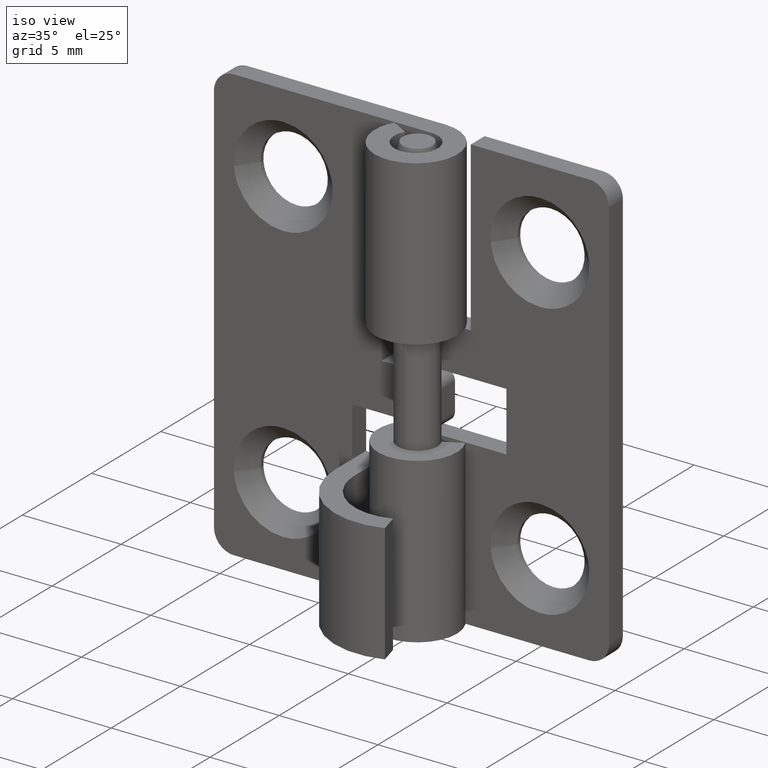
[diagram: clean part render]
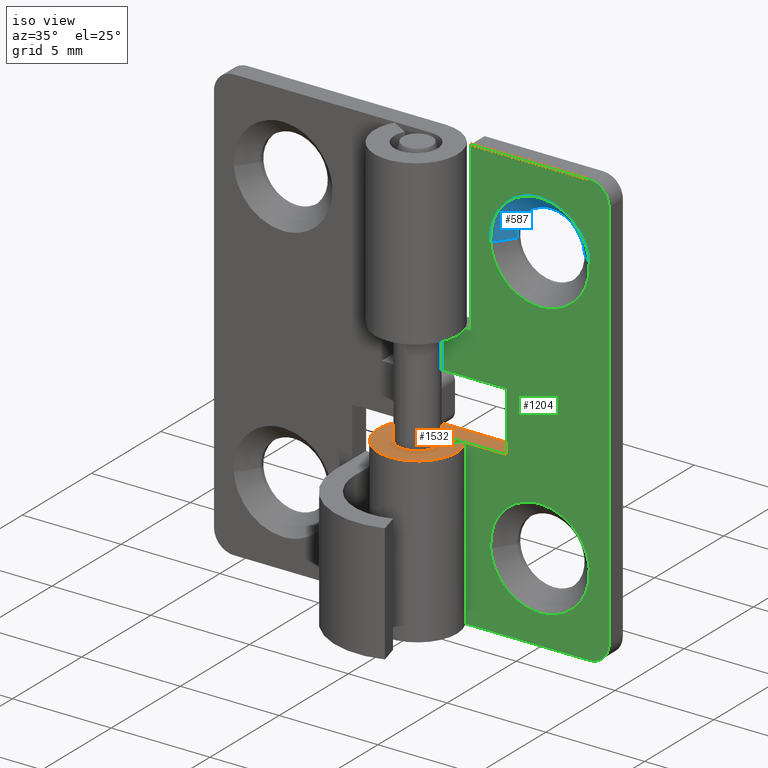
[diagram: same view with three faces highlighted in distinct colors, each labeled with its STEP entity id]
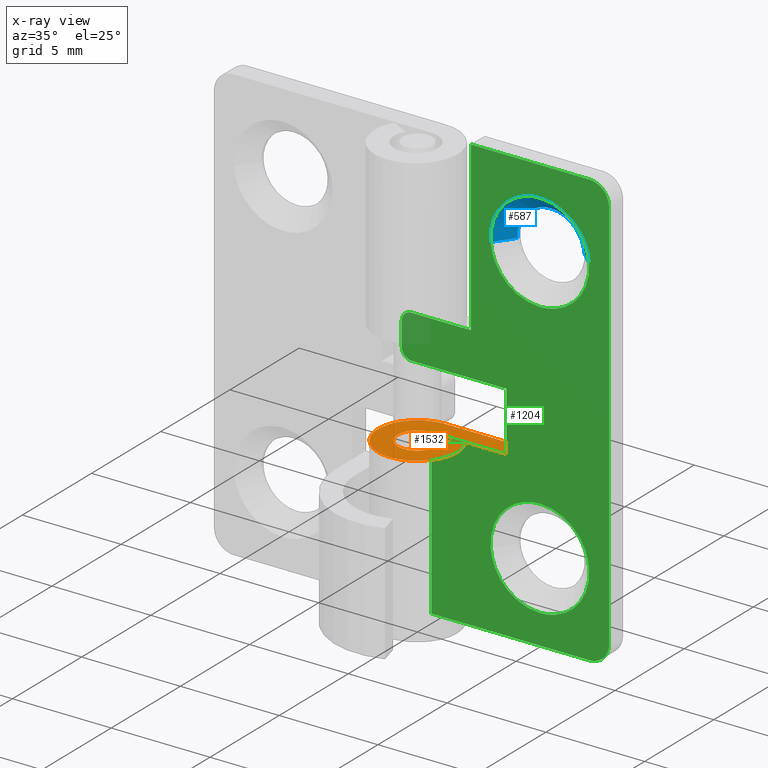
[diagram: x-ray of the same camera — body ghosted, the three highlighted faces saturated]
A machine part, iso view with three faces highlighted in distinct colors.
The next image is the same camera in x-ray (body ghosted, the three faces saturated) — at least one of them is partly hidden behind the body in this view.
Their STEP definitions:

[orange] entity #1532 — the highlighted face is a freeform B-spline surface patch.
#981=CARTESIAN_POINT('',(-0.000006965093345,1.0,8.299999999999749));
#982=VERTEX_POINT('',#981);
#990=CARTESIAN_POINT('',(0.879978830246548,0.475000000000011,8.299999999999749));
#991=VERTEX_POINT('',#990);
#992=CARTESIAN_POINT('',(-0.000006965093345,1.0,8.299999999999749));
#993=CARTESIAN_POINT('',(-0.081370259930083,1.000019977167096,8.299999999999747));
#994=CARTESIAN_POINT('',(-0.240701080772398,0.980448577172793,8.299999999999740));
#995=CARTESIAN_POINT('',(-0.445075075085504,0.903277571020076,8.299999999999738));
#996=CARTESIAN_POINT('',(-0.631964925553096,0.784947837464034,8.299999999999828));
#997=CARTESIAN_POINT('',(-0.780456693386467,0.638620629246154,8.299999999999521));
#998=CARTESIAN_POINT('',(-0.899731004911428,0.452102205491534,8.299999999999869));
#999=CARTESIAN_POINT('',(-0.970427842706709,0.267420976054226,8.299999999999649));
#1000=CARTESIAN_POINT('',(-1.001024135862589,0.086148387354499,8.299999999999834));
#1001=CARTESIAN_POINT('',(-1.000928656308212,-0.090661618224671,8.299999999999614));
#1002=CARTESIAN_POINT('',(-0.973884994139413,-0.244989656259819,8.300000000000038));
#1003=CARTESIAN_POINT('',(-0.918674884419100,-0.405596291784727,8.299999999999720));
#1004=CARTESIAN_POINT('',(-0.829128914519692,-0.574015514614957,8.299999999999258));
#1005=CARTESIAN_POINT('',(-0.670513937231774,-0.757650112962915,8.300000000000548));
#1006=CARTESIAN_POINT('',(-0.460621345178827,-0.899352063673781,8.299999999999038));
#1007=CARTESIAN_POINT('',(-0.242278565492833,-0.977716447252212,8.299999999999555));
#1008=CARTESIAN_POINT('',(-0.049925210100088,-1.004066228414415,8.299999999999960));
#1009=CARTESIAN_POINT('',(0.140393800371898,-0.996108454492742,8.299999999998995));
#1010=CARTESIAN_POINT('',(0.322983651035409,-0.953365146317476,8.300000000001209));
#1011=CARTESIAN_POINT('',(0.515002552293337,-0.865701593204397,8.299999999999166));
#1012=CARTESIAN_POINT('',(0.682406862759888,-0.741893534516543,8.299999999999510));
#1013=CARTESIAN_POINT('',(0.834396962778314,-0.566969021772626,8.300000000000340));
#1014=CARTESIAN_POINT('',(0.936665235401503,-0.373626250166734,8.299999999999443));
#1015=CARTESIAN_POINT('',(0.989724682688783,-0.176262381763561,8.299999999999816));
#1016=CARTESIAN_POINT('',(1.005856368342022,0.013537876973989,8.299999999999736));
#1017=CARTESIAN_POINT('',(0.982989422480446,0.233976477823912,8.299999999999756));
#1018=CARTESIAN_POINT('',(0.925104016529079,0.391483135513708,8.299999999999745));
#1019=CARTESIAN_POINT('',(0.879978830246548,0.475000000000011,8.299999999999749));
#1020=B_SPLINE_CURVE_WITH_KNOTS('',3,(#992,#993,#994,#995,#996,#997,#998,#999,#1000,#1001,#1002,#1003,#1004,#1005,#1006,#1007,#1008,#1009,#1010,#1011,#1012,#1013,#1014,#1015,#1016,#1017,#1018,#1019),.UNSPECIFIED.,.F.,.U.,(4,1,1,1,1,1,1,1,1,1,1,1,1,1,1,1,1,1,1,1,1,1,1,1,1,4),(0.000000120187885,0.244086064710488,0.478018808845063,0.650922347015783,0.905192610832736,1.098435144828809,1.312001110971242,1.495076171934674,1.647640630548407,1.840887879058792,1.962936539922287,2.156183852194436,2.410455558530331,2.685040475316551,2.908802662388903,3.102048450986415,3.264780375931596,3.478369327339765,3.661437057523252,3.895374455493550,4.098763843950596,4.353035550284639,4.546282862554501,4.709014787497143,4.922601068480472,5.207375455252501),.UNSPECIFIED.);
#1021=EDGE_CURVE('',#982,#991,#1020,.T.);
#1177=CARTESIAN_POINT('',(3.799999999999955,1.0,8.299999999999798));
#1178=VERTEX_POINT('',#1177);
#1184=CARTESIAN_POINT('',(-0.000006965093345,1.0,8.299999999999749));
#1185=CARTESIAN_POINT('',(3.799999999999955,1.0,8.299999999999798));
#1186=QUASI_UNIFORM_CURVE('',1,(#1184,#1185),.UNSPECIFIED.,.F.,.U.);
#1187=EDGE_CURVE('',#982,#1178,#1186,.T.);
#1467=CARTESIAN_POINT('',(4.089710068468082,-2.199779040433200,8.299999999999798));
#1468=CARTESIAN_POINT('',(-2.289711819820733,-2.199779040433200,8.299999999999798));
#1469=CARTESIAN_POINT('',(4.089710068468082,2.199807483362808,8.299999999999798));
#1470=CARTESIAN_POINT('',(-2.289711819820733,2.199807483362808,8.299999999999798));
#1471=B_SPLINE_SURFACE_WITH_KNOTS('',1,1,((#1467,#1469),(#1468,#1470)),.UNSPECIFIED.,.F.,.F.,.U.,(2,2),(2,2),(0.0,6.379421888288816),(0.0,4.399586523796008),.UNSPECIFIED.);
#1472=CARTESIAN_POINT('',(-0.000006965093348,2.000008000000035,8.299999999999798));
#1473=VERTEX_POINT('',#1472);
#1474=CARTESIAN_POINT('',(1.759964625586445,0.950000000000023,8.299999999999749));
#1475=VERTEX_POINT('',#1474);
#1476=CARTESIAN_POINT('',(-0.000006965093348,2.000008000000035,8.299999999999798));
#1477=CARTESIAN_POINT('',(-0.162736027515723,2.000044504278987,8.299999999999759));
#1478=CARTESIAN_POINT('',(-0.447495352640279,1.965061079306679,8.299999999999896));
#1479=CARTESIAN_POINT('',(-0.807511597155931,1.839462231392853,8.299999999999725));
#1480=CARTESIAN_POINT('',(-1.082166202912576,1.689990233205043,8.299999999999892));
#1481=CARTESIAN_POINT('',(-1.365566465822105,1.478715059453059,8.299999999999818));
#1482=CARTESIAN_POINT('',(-1.622591005192464,1.195392488859381,8.299999999999724));
#1483=CARTESIAN_POINT('',(-1.836918960805826,0.823809617010241,8.299999999999898));
#1484=CARTESIAN_POINT('',(-1.961001906509199,0.455460503094843,8.299999999999768));
#1485=CARTESIAN_POINT('',(-2.005672853655311,0.104231016484522,8.299999999999832));
#1486=CARTESIAN_POINT('',(-1.995327980773310,-0.228579052723852,8.299999999999873));
#1487=CARTESIAN_POINT('',(-1.940403095471004,-0.516161638146743,8.299999999999656));
#1488=CARTESIAN_POINT('',(-1.822185425856305,-0.849040570625403,8.300000000000139));
#1489=CARTESIAN_POINT('',(-1.654408250832302,-1.146075284437597,8.299999999999166));
#1490=CARTESIAN_POINT('',(-1.415647867651395,-1.425272400802040,8.300000000000699));
#1491=CARTESIAN_POINT('',(-1.140041848585184,-1.657733081808701,8.299999999998526));
#1492=CARTESIAN_POINT('',(-0.831014083981307,-1.831607667088232,8.300000000000638));
#1493=CARTESIAN_POINT('',(-0.444939612140593,-1.963605461352163,8.299999999999468));
#1494=CARTESIAN_POINT('',(-0.052145858804571,-2.015417960756452,8.299999999999823));
#1495=CARTESIAN_POINT('',(0.334664835988250,-1.981411818691095,8.299999999999738));
#1496=CARTESIAN_POINT('',(0.663522566589124,-1.895550709857662,8.299999999999733));
#1497=CARTESIAN_POINT('',(0.975205403486523,-1.758970914821508,8.299999999999741));
#1498=CARTESIAN_POINT('',(1.245784825331895,-1.575390971971697,8.299999999999727));
#1499=CARTESIAN_POINT('',(1.473613967383104,-1.361530603824661,8.299999999999733));
#1500=CARTESIAN_POINT('',(1.640315678403764,-1.155277004246180,8.299999999999727));
#1501=CARTESIAN_POINT('',(1.805145114113828,-0.881839121110803,8.299999999999731));
#1502=CARTESIAN_POINT('',(1.946636695510794,-0.527356267160462,8.299999999999647));
#1503=CARTESIAN_POINT('',(2.009241721511169,-0.129217688888698,8.300000000000029));
#1504=CARTESIAN_POINT('',(1.993071361530576,0.251259663452222,8.299999999998947));
#1505=CARTESIAN_POINT('',(1.920998871120806,0.597742678906226,8.300000000001909));
#1506=CARTESIAN_POINT('',(1.824393948001747,0.830677184342205,8.299999999997503));
#1507=CARTESIAN_POINT('',(1.759964625586445,0.950000000000023,8.299999999999749));
#1508=B_SPLINE_CURVE_WITH_KNOTS('',3,(#1476,#1477,#1478,#1479,#1480,#1481,#1482,#1483,#1484,#1485,#1486,#1487,#1488,#1489,#1490,#1491,#1492,#1493,#1494,#1495,#1496,#1497,#1498,#1499,#1500,#1501,#1502,#1503,#1504,#1505,#1506,#1507),.UNSPECIFIED.,.F.,.U.,(4,1,1,1,1,1,1,1,1,1,1,1,1,1,1,1,1,1,1,1,1,1,1,1,1,1,1,1,1,4),(0.000000081835703,0.488181926425398,0.854330395165906,1.139112772657091,1.423894831945756,1.912086998074340,2.278240352626675,2.705392527699861,3.071530619221313,3.335976965983448,3.702121862703955,3.946218378135586,4.393733068731598,4.719197738785935,5.044660580100169,5.471811034114723,5.776928295087360,6.265127727385354,6.651616066265358,6.936398080547859,7.282197147153353,7.668693325937672,7.912774012663915,8.217885729282383,8.461984512461639,8.868817495861713,9.357011868602045,9.662132026390999,10.007943633401799,10.414759565299359),.UNSPECIFIED.);
#1509=EDGE_CURVE('',#1473,#1475,#1508,.T.);
#1510=ORIENTED_EDGE('',*,*,#1509,.T.);
#1511=CARTESIAN_POINT('',(1.759964625586445,0.950000000000023,8.299999999999749));
#1512=CARTESIAN_POINT('',(0.879978830246548,0.475000000000011,8.299999999999749));
#1513=QUASI_UNIFORM_CURVE('',1,(#1511,#1512),.UNSPECIFIED.,.F.,.U.);
#1514=EDGE_CURVE('',#1475,#991,#1513,.T.);
#1515=ORIENTED_EDGE('',*,*,#1514,.T.);
#1516=ORIENTED_EDGE('',*,*,#1021,.F.);
#1517=ORIENTED_EDGE('',*,*,#1187,.T.);
#1518=CARTESIAN_POINT('',(3.799999999999955,2.000008000000000,8.299999999999798));
#1519=VERTEX_POINT('',#1518);
#1520=CARTESIAN_POINT('',(3.799999999999955,1.0,8.299999999999798));
#1521=CARTESIAN_POINT('',(3.799999999999955,2.000008000000000,8.299999999999798));
#1522=QUASI_UNIFORM_CURVE('',1,(#1520,#1521),.UNSPECIFIED.,.F.,.U.);
#1523=EDGE_CURVE('',#1178,#1519,#1522,.T.);
#1524=ORIENTED_EDGE('',*,*,#1523,.T.);
#1525=CARTESIAN_POINT('',(3.799999999999955,2.000008000000000,8.299999999999798));
#1526=CARTESIAN_POINT('',(-0.000006965093348,2.000008000000035,8.299999999999798));
#1527=QUASI_UNIFORM_CURVE('',1,(#1525,#1526),.UNSPECIFIED.,.F.,.U.);
#1528=EDGE_CURVE('',#1519,#1473,#1527,.T.);
#1529=ORIENTED_EDGE('',*,*,#1528,.T.);
#1530=EDGE_LOOP('',(#1510,#1515,#1516,#1517,#1524,#1529));
#1531=FACE_OUTER_BOUND('',#1530,.T.);
#1532=ADVANCED_FACE('',(#1531),#1471,.F.);

[blue] entity #587 — the highlighted face is a freeform B-spline surface patch.
#387=CARTESIAN_POINT('',(3.803163912473091,1.799999999984220,17.896202484102648));
#388=VERTEX_POINT('',#387);
#409=CARTESIAN_POINT('',(7.196822157340209,1.799999999984220,18.103767515897449));
#410=VERTEX_POINT('',#409);
#468=CARTESIAN_POINT('',(5.499993034906650,1.800000000000000,19.699984965093520));
#469=VERTEX_POINT('',#468);
#470=CARTESIAN_POINT('',(5.499993034906650,1.800000000000000,19.699984965093520));
#471=CARTESIAN_POINT('',(7.072491683293800,1.799999999992111,19.685185992982454));
#472=CARTESIAN_POINT('',(7.196822157340210,1.799999999984221,18.103767515897452));
#480=(BOUNDED_CURVE()B_SPLINE_CURVE(2,(#470,#471,#472),.UNSPECIFIED.,.F.,.U.)B_SPLINE_CURVE_WITH_KNOTS((3,3),(0.0,0.236331300620545),.UNSPECIFIED.)CURVE()GEOMETRIC_REPRESENTATION_ITEM()RATIONAL_B_SPLINE_CURVE((1.0,0.723120658619515,0.969723356146310))REPRESENTATION_ITEM(''));
#481=EDGE_CURVE('',#469,#410,#480,.T.);
#483=CARTESIAN_POINT('',(3.803163912473091,1.799999999984220,17.896202484102648));
#484=CARTESIAN_POINT('',(3.799993069805433,1.799999999984449,17.948045303047852));
#485=CARTESIAN_POINT('',(3.799993069805554,1.799999999984692,17.999984999999320));
#486=CARTESIAN_POINT('',(3.799993069809547,1.799999999992647,19.699984965093179));
#487=CARTESIAN_POINT('',(5.499993034906650,1.800000000000000,19.699984965093520));
#495=(BOUNDED_CURVE()B_SPLINE_CURVE(2,(#483,#484,#485,#486,#487),.UNSPECIFIED.,.F.,.U.)B_SPLINE_CURVE_WITH_KNOTS((3,2,3),(0.739332962158749,0.750000000000000,1.0),.UNSPECIFIED.)CURVE()GEOMETRIC_REPRESENTATION_ITEM()RATIONAL_B_SPLINE_CURVE((0.976072041494847,0.987502787805884,1.0,0.707106781186548,1.0))REPRESENTATION_ITEM(''));
#496=EDGE_CURVE('',#388,#469,#495,.T.);
#517=CARTESIAN_POINT('',(7.178936219164373,1.820000000000000,18.079420052061803));
#518=CARTESIAN_POINT('',(7.176888605985745,1.820000000000002,18.105437444330008));
#519=CARTESIAN_POINT('',(7.043002842695342,1.820000000000001,19.806617363956835));
#520=CARTESIAN_POINT('',(5.368181756822604,1.820000000000000,19.674806085872788));
#521=CARTESIAN_POINT('',(3.693360670949866,1.820000000000001,19.542994807788745));
#522=CARTESIAN_POINT('',(3.826106991442097,1.819999999999999,17.856292881640567));
#523=CARTESIAN_POINT('',(3.827036554991341,1.820000000000001,17.844481656868606));
#524=CARTESIAN_POINT('',(8.018907514217403,0.979500000000000,18.119161220302956));
#525=CARTESIAN_POINT('',(8.015835485019489,0.979500000000000,18.158195052247216));
#526=CARTESIAN_POINT('',(7.814966991738778,0.979500000000000,20.710471252918776));
#527=CARTESIAN_POINT('',(5.302236886863350,0.979500000000000,20.512715104875479));
#528=CARTESIAN_POINT('',(2.789506781987921,0.979500000000000,20.314958956832182));
#529=CARTESIAN_POINT('',(2.988665771939651,0.979499999999999,17.784404055455724));
#530=CARTESIAN_POINT('',(2.990060393928998,0.979500000000000,17.766683702929544));
#538=(BOUNDED_SURFACE()B_SPLINE_SURFACE(2,1,((#517,#524),(#518,#525),(#519,#526),(#520,#527),(#521,#528),(#522,#529),(#523,#530)),.UNSPECIFIED.,.F.,.F.,.U.)B_SPLINE_SURFACE_WITH_KNOTS((3,1,2,1,3),(2,2),(0.0,0.093558707196732,4.269659785207255,8.445760863217776,8.487779573996276),(0.0,1.0),.UNSPECIFIED.)GEOMETRIC_REPRESENTATION_ITEM()RATIONAL_B_SPLINE_SURFACE(((1.013123586037305,1.013123586037305),(1.006561793018652,1.006561793018652),(0.707106781186548,0.707106781186548),(1.0,1.0),(0.707106781186548,0.707106781186548),(1.002947006123753,1.002947006123753),(1.005894012247505,1.005894012247505)))REPRESENTATION_ITEM('')SURFACE());
#539=ORIENTED_EDGE('',*,*,#481,.T.);
#540=CARTESIAN_POINT('',(7.992286334441273,0.999999999998200,18.196132736594699));
#541=VERTEX_POINT('',#540);
#542=CARTESIAN_POINT('',(7.196822157340209,1.799999999984220,18.103767515897449));
#543=CARTESIAN_POINT('',(7.992286334441273,0.999999999998200,18.196132736594699));
#544=QUASI_UNIFORM_CURVE('',1,(#542,#543),.UNSPECIFIED.,.F.,.U.);
#545=EDGE_CURVE('',#410,#541,#544,.T.);
#546=ORIENTED_EDGE('',*,*,#545,.T.);
#547=CARTESIAN_POINT('',(5.499993034906650,1.0,20.499984965093532));
#548=VERTEX_POINT('',#547);
#549=CARTESIAN_POINT('',(5.499993034906650,1.0,20.499984965093532));
#550=CARTESIAN_POINT('',(7.810969231773130,0.999999999999100,20.499984965093603));
#551=CARTESIAN_POINT('',(7.992286334441273,0.999999999998200,18.196132736594691));
#559=(BOUNDED_CURVE()B_SPLINE_CURVE(2,(#549,#550,#551),.UNSPECIFIED.,.F.,.U.)B_SPLINE_CURVE_WITH_KNOTS((3,3),(0.0,0.236331300631830),.UNSPECIFIED.)CURVE()GEOMETRIC_REPRESENTATION_ITEM()RATIONAL_B_SPLINE_CURVE((1.0,0.723120658606295,0.969723356169859))REPRESENTATION_ITEM(''));
#560=EDGE_CURVE('',#548,#541,#559,.T.);
#561=ORIENTED_EDGE('',*,*,#560,.F.);
#562=CARTESIAN_POINT('',(3.007699735372027,0.999999999998199,17.803837263405399));
#563=VERTEX_POINT('',#562);
#564=CARTESIAN_POINT('',(3.007699735372027,0.999999999998199,17.803837263405406));
#565=CARTESIAN_POINT('',(2.999993069811413,0.999999999998232,17.901759733845370));
#566=CARTESIAN_POINT('',(2.999993069811448,0.999999999998268,17.999984999999910));
#567=CARTESIAN_POINT('',(2.999993069812345,0.999999999999168,20.499984965093450));
#568=CARTESIAN_POINT('',(5.499993034906650,1.0,20.499984965093532));
#576=(BOUNDED_CURVE()B_SPLINE_CURVE(2,(#564,#565,#566,#567,#568),.UNSPECIFIED.,.F.,.U.)B_SPLINE_CURVE_WITH_KNOTS((3,2,3),(0.736331300631830,0.750000000000000,1.0),.UNSPECIFIED.)CURVE()GEOMETRIC_REPRESENTATION_ITEM()RATIONAL_B_SPLINE_CURVE((0.969723356169860,0.983986122580253,1.0,0.707106781186548,1.0))REPRESENTATION_ITEM(''));
#577=EDGE_CURVE('',#563,#548,#576,.T.);
#578=ORIENTED_EDGE('',*,*,#577,.F.);
#579=CARTESIAN_POINT('',(3.803163912473091,1.799999999984220,17.896202484102648));
#580=CARTESIAN_POINT('',(3.007699735372027,0.999999999998199,17.803837263405399));
#581=QUASI_UNIFORM_CURVE('',1,(#579,#580),.UNSPECIFIED.,.F.,.U.);
#582=EDGE_CURVE('',#388,#563,#581,.T.);
#583=ORIENTED_EDGE('',*,*,#582,.F.);
#584=ORIENTED_EDGE('',*,*,#496,.T.);
#585=EDGE_LOOP('',(#539,#546,#561,#578,#583,#584));
#586=FACE_OUTER_BOUND('',#585,.T.);
#587=ADVANCED_FACE('',(#586),#538,.F.);

[green] entity #1204 — the highlighted face is a freeform B-spline surface patch.
#540=CARTESIAN_POINT('',(7.992286334441273,0.999999999998200,18.196132736594699));
#541=VERTEX_POINT('',#540);
#547=CARTESIAN_POINT('',(5.499993034906650,1.0,20.499984965093532));
#548=VERTEX_POINT('',#547);
#549=CARTESIAN_POINT('',(5.499993034906650,1.0,20.499984965093532));
#550=CARTESIAN_POINT('',(7.810969231773130,0.999999999999100,20.499984965093603));
#551=CARTESIAN_POINT('',(7.992286334441273,0.999999999998200,18.196132736594691));
#559=(BOUNDED_CURVE()B_SPLINE_CURVE(2,(#549,#550,#551),.UNSPECIFIED.,.F.,.U.)B_SPLINE_CURVE_WITH_KNOTS((3,3),(0.0,0.236331300631830),.UNSPECIFIED.)CURVE()GEOMETRIC_REPRESENTATION_ITEM()RATIONAL_B_SPLINE_CURVE((1.0,0.723120658606295,0.969723356169859))REPRESENTATION_ITEM(''));
#560=EDGE_CURVE('',#548,#541,#559,.T.);
#562=CARTESIAN_POINT('',(3.007699735372027,0.999999999998199,17.803837263405399));
#563=VERTEX_POINT('',#562);
#564=CARTESIAN_POINT('',(3.007699735372027,0.999999999998199,17.803837263405406));
#565=CARTESIAN_POINT('',(2.999993069811413,0.999999999998232,17.901759733845370));
#566=CARTESIAN_POINT('',(2.999993069811448,0.999999999998268,17.999984999999910));
#567=CARTESIAN_POINT('',(2.999993069812345,0.999999999999168,20.499984965093450));
#568=CARTESIAN_POINT('',(5.499993034906650,1.0,20.499984965093532));
#576=(BOUNDED_CURVE()B_SPLINE_CURVE(2,(#564,#565,#566,#567,#568),.UNSPECIFIED.,.F.,.U.)B_SPLINE_CURVE_WITH_KNOTS((3,2,3),(0.736331300631830,0.750000000000000,1.0),.UNSPECIFIED.)CURVE()GEOMETRIC_REPRESENTATION_ITEM()RATIONAL_B_SPLINE_CURVE((0.969723356169860,0.983986122580253,1.0,0.707106781186548,1.0))REPRESENTATION_ITEM(''));
#577=EDGE_CURVE('',#563,#548,#576,.T.);
#613=CARTESIAN_POINT('',(5.499993034906650,1.0,15.499985034906571));
#614=VERTEX_POINT('',#613);
#615=CARTESIAN_POINT('',(5.499993034906650,1.0,15.499985034906571));
#616=CARTESIAN_POINT('',(3.189016838040166,0.999999999999100,15.499985034906503));
#617=CARTESIAN_POINT('',(3.007699735372027,0.999999999998199,17.803837263405402));
#625=(BOUNDED_CURVE()B_SPLINE_CURVE(2,(#615,#616,#617),.UNSPECIFIED.,.F.,.U.)B_SPLINE_CURVE_WITH_KNOTS((3,3),(0.500000000000000,0.736331300631830),.UNSPECIFIED.)CURVE()GEOMETRIC_REPRESENTATION_ITEM()RATIONAL_B_SPLINE_CURVE((1.0,0.723120658606295,0.969723356169860))REPRESENTATION_ITEM(''));
#626=EDGE_CURVE('',#614,#563,#625,.T.);
#628=CARTESIAN_POINT('',(7.992286334441273,0.999999999998200,18.196132736594691));
#629=CARTESIAN_POINT('',(7.999993000001887,0.999999999998232,18.098210266154730));
#630=CARTESIAN_POINT('',(7.999993000001854,0.999999999998268,17.999985000000191));
#631=CARTESIAN_POINT('',(7.999993000000956,0.999999999999168,15.499985034906638));
#632=CARTESIAN_POINT('',(5.499993034906650,1.0,15.499985034906571));
#640=(BOUNDED_CURVE()B_SPLINE_CURVE(2,(#628,#629,#630,#631,#632),.UNSPECIFIED.,.F.,.U.)B_SPLINE_CURVE_WITH_KNOTS((3,2,3),(0.236331300631830,0.250000000000000,0.500000000000000),.UNSPECIFIED.)CURVE()GEOMETRIC_REPRESENTATION_ITEM()RATIONAL_B_SPLINE_CURVE((0.969723356169860,0.983986122580253,1.0,0.707106781186548,1.0))REPRESENTATION_ITEM(''));
#641=EDGE_CURVE('',#541,#614,#640,.T.);
#852=CARTESIAN_POINT('',(7.992286334441272,0.999999999998200,4.196132736594698));
#853=VERTEX_POINT('',#852);
#859=CARTESIAN_POINT('',(5.499993034906650,1.0,6.499984965093526));
#860=VERTEX_POINT('',#859);
#861=CARTESIAN_POINT('',(5.499993034906650,1.0,6.499984965093526));
#862=CARTESIAN_POINT('',(7.810969231773131,0.999999999999100,6.499984965093599));
#863=CARTESIAN_POINT('',(7.992286334441272,0.999999999998200,4.196132736594698));
#871=(BOUNDED_CURVE()B_SPLINE_CURVE(2,(#861,#862,#863),.UNSPECIFIED.,.F.,.U.)B_SPLINE_CURVE_WITH_KNOTS((3,3),(0.0,0.236331300631830),.UNSPECIFIED.)CURVE()GEOMETRIC_REPRESENTATION_ITEM()RATIONAL_B_SPLINE_CURVE((1.0,0.723120658606295,0.969723356169859))REPRESENTATION_ITEM(''));
#872=EDGE_CURVE('',#860,#853,#871,.T.);
#874=CARTESIAN_POINT('',(3.007699735372027,0.999999999998199,3.803837263405403));
#875=VERTEX_POINT('',#874);
#876=CARTESIAN_POINT('',(3.007699735372027,0.999999999998199,3.803837263405402));
#877=CARTESIAN_POINT('',(2.999993069811413,0.999999999998232,3.901759733845372));
#878=CARTESIAN_POINT('',(2.999993069811448,0.999999999998267,3.999984999999914));
#879=CARTESIAN_POINT('',(2.999993069812345,0.999999999999168,6.499984965093463));
#880=CARTESIAN_POINT('',(5.499993034906650,1.0,6.499984965093526));
#888=(BOUNDED_CURVE()B_SPLINE_CURVE(2,(#876,#877,#878,#879,#880),.UNSPECIFIED.,.F.,.U.)B_SPLINE_CURVE_WITH_KNOTS((3,2,3),(0.736331300631830,0.750000000000000,1.0),.UNSPECIFIED.)CURVE()GEOMETRIC_REPRESENTATION_ITEM()RATIONAL_B_SPLINE_CURVE((0.969723356169859,0.983986122580253,1.0,0.707106781186548,1.0))REPRESENTATION_ITEM(''));
#889=EDGE_CURVE('',#875,#860,#888,.T.);
#925=CARTESIAN_POINT('',(5.499993034906650,1.0,1.499985034906575));
#926=VERTEX_POINT('',#925);
#927=CARTESIAN_POINT('',(5.499993034906650,1.0,1.499985034906575));
#928=CARTESIAN_POINT('',(3.189016838040170,0.999999999999100,1.499985034906505));
#929=CARTESIAN_POINT('',(3.007699735372027,0.999999999998199,3.803837263405402));
#937=(BOUNDED_CURVE()B_SPLINE_CURVE(2,(#927,#928,#929),.UNSPECIFIED.,.F.,.U.)B_SPLINE_CURVE_WITH_KNOTS((3,3),(0.500000000000000,0.736331300631830),.UNSPECIFIED.)CURVE()GEOMETRIC_REPRESENTATION_ITEM()RATIONAL_B_SPLINE_CURVE((1.0,0.723120658606295,0.969723356169859))REPRESENTATION_ITEM(''));
#938=EDGE_CURVE('',#926,#875,#937,.T.);
#940=CARTESIAN_POINT('',(7.992286334441272,0.999999999998200,4.196132736594698));
#941=CARTESIAN_POINT('',(7.999993000001888,0.999999999998232,4.098210266154728));
#942=CARTESIAN_POINT('',(7.999993000001853,0.999999999998268,3.999985000000186));
#943=CARTESIAN_POINT('',(7.999993000000956,0.999999999999168,1.499985034906641));
#944=CARTESIAN_POINT('',(5.499993034906650,1.0,1.499985034906575));
#952=(BOUNDED_CURVE()B_SPLINE_CURVE(2,(#940,#941,#942,#943,#944),.UNSPECIFIED.,.F.,.U.)B_SPLINE_CURVE_WITH_KNOTS((3,2,3),(0.236331300631830,0.250000000000000,0.500000000000000),.UNSPECIFIED.)CURVE()GEOMETRIC_REPRESENTATION_ITEM()RATIONAL_B_SPLINE_CURVE((0.969723356169859,0.983986122580253,1.0,0.707106781186548,1.0))REPRESENTATION_ITEM(''));
#953=EDGE_CURVE('',#853,#926,#952,.T.);
#981=CARTESIAN_POINT('',(-0.000006965093345,1.0,8.299999999999749));
#982=VERTEX_POINT('',#981);
#983=CARTESIAN_POINT('',(-0.000006965093345,1.000000000000028,0.0));
#984=VERTEX_POINT('',#983);
#985=CARTESIAN_POINT('',(-0.000006965093345,1.0,8.299999999999749));
#986=CARTESIAN_POINT('',(-0.000006965093345,1.000000000000028,0.0));
#987=QUASI_UNIFORM_CURVE('',1,(#985,#986),.UNSPECIFIED.,.F.,.U.);
#988=EDGE_CURVE('',#982,#984,#987,.T.);
#1063=CARTESIAN_POINT('',(-2.024474631742564,1.0,-1.098899957359731));
#1064=CARTESIAN_POINT('',(9.524467948280973,1.0,-1.098899957359731));
#1065=CARTESIAN_POINT('',(-2.024474631742564,1.0,23.098900547445709));
#1066=CARTESIAN_POINT('',(9.524467948280975,1.0,23.098900547445709));
#1067=B_SPLINE_SURFACE_WITH_KNOTS('',1,1,((#1063,#1065),(#1064,#1066)),.UNSPECIFIED.,.F.,.F.,.U.,(2,2),(2,2),(0.0,11.548942580023541),(0.0,24.197800504805439),.UNSPECIFIED.);
#1068=CARTESIAN_POINT('',(7.999993034906649,1.0,1.421085E-014));
#1069=VERTEX_POINT('',#1068);
#1070=CARTESIAN_POINT('',(7.999993034906649,1.0,1.421085E-014));
#1071=CARTESIAN_POINT('',(-0.000006965093345,1.000000000000028,0.0));
#1072=QUASI_UNIFORM_CURVE('',1,(#1070,#1071),.UNSPECIFIED.,.F.,.U.);
#1073=EDGE_CURVE('',#1069,#984,#1072,.T.);
#1074=ORIENTED_EDGE('',*,*,#1073,.F.);
#1075=CARTESIAN_POINT('',(8.999993034906650,1.000008000000092,1.0));
#1076=VERTEX_POINT('',#1075);
#1077=CARTESIAN_POINT('',(7.999993034906649,1.0,1.421085E-014));
#1078=CARTESIAN_POINT('',(8.999993034906650,1.000004000000046,7.047314E-015));
#1079=CARTESIAN_POINT('',(8.999993034906650,1.000008000000092,1.0));
#1087=(BOUNDED_CURVE()B_SPLINE_CURVE(2,(#1077,#1078,#1079),.UNSPECIFIED.,.F.,.U.)CURVE()GEOMETRIC_REPRESENTATION_ITEM()QUASI_UNIFORM_CURVE()RATIONAL_B_SPLINE_CURVE((1.0,0.707106781186548,1.0))REPRESENTATION_ITEM(''));
#1088=EDGE_CURVE('',#1069,#1076,#1087,.T.);
#1089=ORIENTED_EDGE('',*,*,#1088,.T.);
#1090=CARTESIAN_POINT('',(8.999993034906650,1.000008000000092,21.0));
#1091=VERTEX_POINT('',#1090);
#1092=CARTESIAN_POINT('',(8.999993034906650,1.000008000000092,21.0));
#1093=CARTESIAN_POINT('',(8.999993034906650,1.000008000000092,1.0));
#1094=QUASI_UNIFORM_CURVE('',1,(#1092,#1093),.UNSPECIFIED.,.F.,.U.);
#1095=EDGE_CURVE('',#1091,#1076,#1094,.T.);
#1096=ORIENTED_EDGE('',*,*,#1095,.F.);
#1097=CARTESIAN_POINT('',(7.999993034906649,1.0,22.0));
#1098=VERTEX_POINT('',#1097);
#1099=CARTESIAN_POINT('',(8.999993034906650,1.000008000000092,21.0));
#1100=CARTESIAN_POINT('',(8.999993034906650,1.000004000000046,22.000000000000007));
#1101=CARTESIAN_POINT('',(7.999993034906649,1.0,22.0));
#1109=(BOUNDED_CURVE()B_SPLINE_CURVE(2,(#1099,#1100,#1101),.UNSPECIFIED.,.F.,.U.)CURVE()GEOMETRIC_REPRESENTATION_ITEM()QUASI_UNIFORM_CURVE()RATIONAL_B_SPLINE_CURVE((1.0,0.707106781186548,1.0))REPRESENTATION_ITEM(''));
#1110=EDGE_CURVE('',#1091,#1098,#1109,.T.);
#1111=ORIENTED_EDGE('',*,*,#1110,.T.);
#1112=CARTESIAN_POINT('',(2.0,1.000000000000022,22.0));
#1113=VERTEX_POINT('',#1112);
#1114=CARTESIAN_POINT('',(7.999993034906649,1.0,22.0));
#1115=CARTESIAN_POINT('',(2.0,1.000000000000022,22.0));
#1116=QUASI_UNIFORM_CURVE('',1,(#1114,#1115),.UNSPECIFIED.,.F.,.U.);
#1117=EDGE_CURVE('',#1098,#1113,#1116,.T.);
#1118=ORIENTED_EDGE('',*,*,#1117,.T.);
#1119=CARTESIAN_POINT('',(2.0,1.0,13.500000000000000));
#1120=VERTEX_POINT('',#1119);
#1121=CARTESIAN_POINT('',(2.0,1.0,13.500000000000000));
#1122=CARTESIAN_POINT('',(2.0,1.000000000000022,22.0));
#1123=QUASI_UNIFORM_CURVE('',1,(#1121,#1122),.UNSPECIFIED.,.F.,.U.);
#1124=EDGE_CURVE('',#1120,#1113,#1123,.T.);
#1125=ORIENTED_EDGE('',*,*,#1124,.F.);
#1126=CARTESIAN_POINT('',(-1.0,1.000000000000028,13.500000000000000));
#1127=VERTEX_POINT('',#1126);
#1128=CARTESIAN_POINT('',(-1.0,1.000000000000028,13.500000000000000));
#1129=CARTESIAN_POINT('',(2.0,1.0,13.500000000000000));
#1130=QUASI_UNIFORM_CURVE('',1,(#1128,#1129),.UNSPECIFIED.,.F.,.U.);
#1131=EDGE_CURVE('',#1127,#1120,#1130,.T.);
#1132=ORIENTED_EDGE('',*,*,#1131,.F.);
#1133=CARTESIAN_POINT('',(-1.500000000000000,1.000000000000028,13.0));
#1134=VERTEX_POINT('',#1133);
#1135=CARTESIAN_POINT('',(-1.0,1.0,13.500000000000000));
#1136=CARTESIAN_POINT('',(-1.500000000000000,1.0,13.500000000000000));
#1137=CARTESIAN_POINT('',(-1.500000000000000,1.0,13.0));
#1145=(BOUNDED_CURVE()B_SPLINE_CURVE(2,(#1135,#1136,#1137),.UNSPECIFIED.,.F.,.U.)CURVE()GEOMETRIC_REPRESENTATION_ITEM()QUASI_UNIFORM_CURVE()RATIONAL_B_SPLINE_CURVE((1.0,0.707106781186548,1.0))REPRESENTATION_ITEM(''));
#1146=EDGE_CURVE('',#1127,#1134,#1145,.T.);
#1147=ORIENTED_EDGE('',*,*,#1146,.T.);
#1148=CARTESIAN_POINT('',(-1.500000000000000,1.000000000000028,11.800000000000001));
#1149=VERTEX_POINT('',#1148);
#1150=CARTESIAN_POINT('',(-1.500000000000000,1.000000000000028,11.800000000000001));
#1151=CARTESIAN_POINT('',(-1.500000000000000,1.000000000000028,13.0));
#1152=QUASI_UNIFORM_CURVE('',1,(#1150,#1151),.UNSPECIFIED.,.F.,.U.);
#1153=EDGE_CURVE('',#1149,#1134,#1152,.T.);
#1154=ORIENTED_EDGE('',*,*,#1153,.F.);
#1155=CARTESIAN_POINT('',(-1.0,1.000000000000032,11.300000000000001));
#1156=VERTEX_POINT('',#1155);
#1157=CARTESIAN_POINT('',(-1.500000000000000,1.000000000000028,11.800000000000001));
#1158=CARTESIAN_POINT('',(-1.500000000000000,1.0,11.299999999999999));
#1159=CARTESIAN_POINT('',(-1.0,1.0,11.300000000000001));
#1167=(BOUNDED_CURVE()B_SPLINE_CURVE(2,(#1157,#1158,#1159),.UNSPECIFIED.,.F.,.U.)CURVE()GEOMETRIC_REPRESENTATION_ITEM()QUASI_UNIFORM_CURVE()RATIONAL_B_SPLINE_CURVE((1.0,0.707106781186548,1.0))REPRESENTATION_ITEM(''));
#1168=EDGE_CURVE('',#1149,#1156,#1167,.T.);
#1169=ORIENTED_EDGE('',*,*,#1168,.T.);
#1170=CARTESIAN_POINT('',(3.799999999999955,1.0,11.300000000000001));
#1171=VERTEX_POINT('',#1170);
#1172=CARTESIAN_POINT('',(3.799999999999955,1.0,11.300000000000001));
#1173=CARTESIAN_POINT('',(-1.0,1.000000000000032,11.300000000000001));
#1174=QUASI_UNIFORM_CURVE('',1,(#1172,#1173),.UNSPECIFIED.,.F.,.U.);
#1175=EDGE_CURVE('',#1171,#1156,#1174,.T.);
#1176=ORIENTED_EDGE('',*,*,#1175,.F.);
#1177=CARTESIAN_POINT('',(3.799999999999955,1.0,8.299999999999798));
#1178=VERTEX_POINT('',#1177);
#1179=CARTESIAN_POINT('',(3.799999999999955,1.0,8.299999999999798));
#1180=CARTESIAN_POINT('',(3.799999999999955,1.0,11.300000000000001));
#1181=QUASI_UNIFORM_CURVE('',1,(#1179,#1180),.UNSPECIFIED.,.F.,.U.);
#1182=EDGE_CURVE('',#1178,#1171,#1181,.T.);
#1183=ORIENTED_EDGE('',*,*,#1182,.F.);
#1184=CARTESIAN_POINT('',(-0.000006965093345,1.0,8.299999999999749));
#1185=CARTESIAN_POINT('',(3.799999999999955,1.0,8.299999999999798));
#1186=QUASI_UNIFORM_CURVE('',1,(#1184,#1185),.UNSPECIFIED.,.F.,.U.);
#1187=EDGE_CURVE('',#982,#1178,#1186,.T.);
#1188=ORIENTED_EDGE('',*,*,#1187,.F.);
#1189=ORIENTED_EDGE('',*,*,#988,.T.);
#1190=EDGE_LOOP('',(#1074,#1089,#1096,#1111,#1118,#1125,#1132,#1147,#1154,#1169,#1176,#1183,#1188,#1189));
#1191=FACE_OUTER_BOUND('',#1190,.T.);
#1192=ORIENTED_EDGE('',*,*,#938,.T.);
#1193=ORIENTED_EDGE('',*,*,#889,.T.);
#1194=ORIENTED_EDGE('',*,*,#872,.T.);
#1195=ORIENTED_EDGE('',*,*,#953,.T.);
#1196=EDGE_LOOP('',(#1192,#1193,#1194,#1195));
#1197=FACE_BOUND('',#1196,.T.);
#1198=ORIENTED_EDGE('',*,*,#626,.T.);
#1199=ORIENTED_EDGE('',*,*,#577,.T.);
#1200=ORIENTED_EDGE('',*,*,#560,.T.);
#1201=ORIENTED_EDGE('',*,*,#641,.T.);
#1202=EDGE_LOOP('',(#1198,#1199,#1200,#1201));
#1203=FACE_BOUND('',#1202,.T.);
#1204=ADVANCED_FACE('',(#1191,#1197,#1203),#1067,.T.);